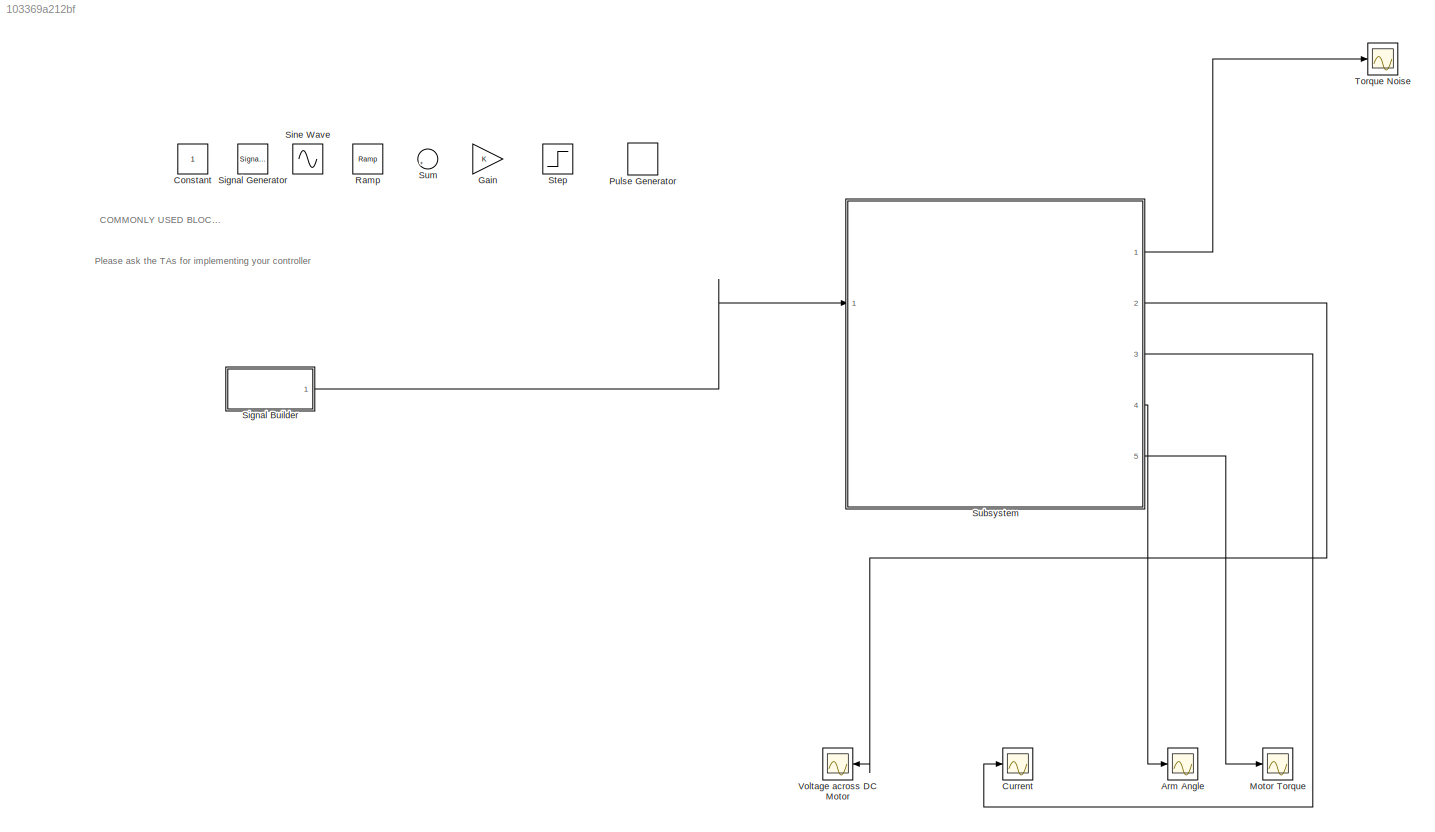
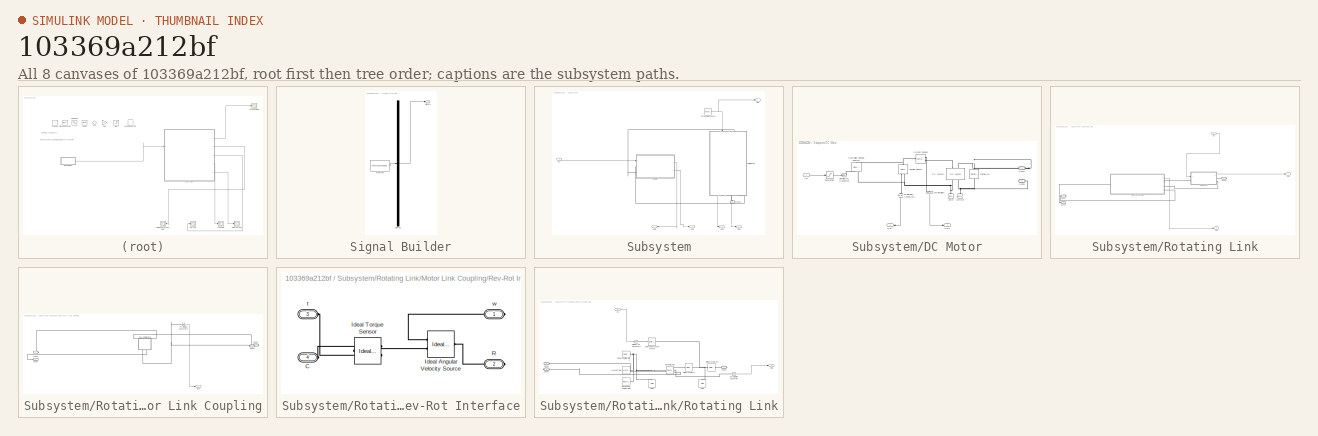
[diagram: thumbnail index - all 8 canvases of the model, root first then tree order]
MODEL slx_103369a212bf
KIND model
BLOCK [Scope] Arm Angle
  DataFormat = StructureWithTime
  Floating = off
  LimitDataPoints = off
  NumInputPorts = 1
  Ports = [1]
  SaveName = ScopeData2
  SaveToWorkspace = on
  ShowLegends = off
  TimeRange = 10
  YMax = 8.0558
  YMin = 0.46239
  ZoomMode = yonly
BLOCK [Constant] Constant
BLOCK [Scope] Current
  DataFormat = StructureWithTime
  Floating = off
  LimitDataPoints = off
  NumInputPorts = 1
  Ports = [1]
  SaveToWorkspace = on
  ShowLegends = off
  TimeRange = 10
  YMax = 0.34734
  YMin = -0.03859
BLOCK [Gain] Gain
  OutDataTypeStr = Inherit: Inherit via internal rule
  ParamDataTypeStr = Inherit: Inherit via internal rule
  SaturateOnIntegerOverflow = off
BLOCK [Scope] Motor Torque
  DataFormat = StructureWithTime
  Floating = off
  LimitDataPoints = off
  NumInputPorts = 1
  Ports = [1]
  SaveName = ScopeData5
  SaveToWorkspace = on
  ShowLegends = off
  TimeRange = 10
  YMax = 0.10255
  YMin = -0.10344
BLOCK [DiscretePulseGenerator] Pulse Generator
  Period = 10
  Ports = [0, 1]
  PulseType = Time based
  PulseWidth = 5
BLOCK [Reference] Ramp  REF=simulink/Sources/Ramp
  Ports = [0, 1]
  SourceBlock = simulink/Sources/Ramp
  SourceType = Ramp
  VectorParams1D = on
  X0 = 0
  slope = 1
  start = 0
BLOCK [SubSystem] Signal Builder
  ClipboardFcn = sigbuilder_block('clipboard');
  CloseFcn = sigbuilder_block('close');
  ContinueFcn = sigbuilder_block('continue');
  CopyFcn = sigbuilder_block('copy');
  DeleteFcn = sigbuilder_block('delete');
  LoadFcn = sigbuilder_block('load');
  MaskHideContents = on
  ModelCloseFcn = sigbuilder_block('modelClose');
  NameChangeFcn = sigbuilder_block('namechange');
  OpenFcn = sigbuilder_block('open',[437.6 199.2 550.4 400 ]);
  PauseFcn = sigbuilder_block('pause');
  Ports = [0, 1]
  PreSaveFcn = sigbuilder_block('preSave');
  RequestExecContextInheritance = off
  StartFcn = sigbuilder_block('start');
  StopFcn = sigbuilder_block('stop');
  Tag = STV Subsys
BLOCK [Demux] Signal Builder/Demux
  Outputs = 1
  Ports = [1, 1]
  Tag = STV Demux
BLOCK [FromWorkspace] Signal Builder/FromWs
  SampleTime = 0
  Tag = STV FromWs
  VariableName = tuvar
  ZeroCross = on
BLOCK [Outport] Signal Builder/Signal 1
  IconDisplay = Port number
  Tag = STV Outport
BLOCK [SignalGenerator] Signal Generator
  Ports = [0, 1]
  Units = rad/sec
BLOCK [Sin] Sine Wave
  Ports = [0, 1]
  SampleTime = 0
BLOCK [Step] Step
  SampleTime = 0
BLOCK [SubSystem] Subsystem
  Ports = [1, 5, 0, 0, 0, 1]
  RequestExecContextInheritance = off
BLOCK [PMIOPort] Subsystem/Conn1
  Port = 1
  Side = Left
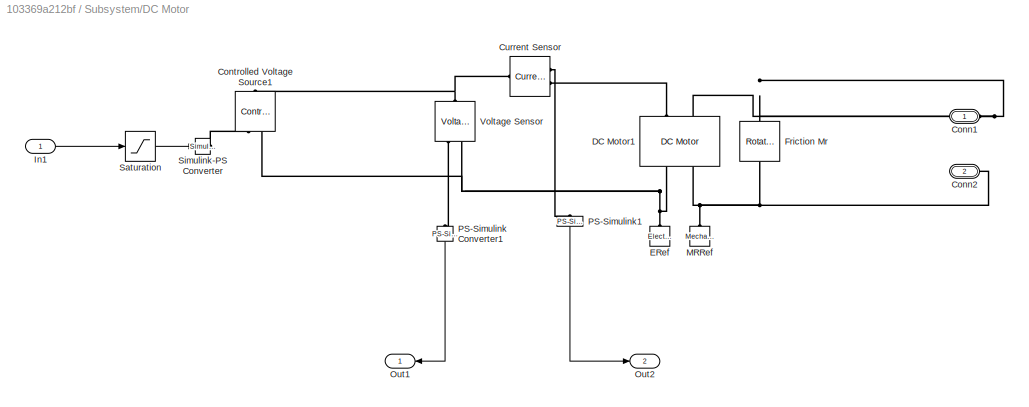
BLOCK [SubSystem] Subsystem/DC Motor
  Ports = [1, 2, 0, 0, 0, 2]
  RequestExecContextInheritance = off
  ShowPortLabels = SignalName
BLOCK [PMIOPort] Subsystem/DC Motor/Conn1
  Port = 1
  Side = Left
BLOCK [PMIOPort] Subsystem/DC Motor/Conn2
  Port = 2
  Side = Left
BLOCK [Reference] Subsystem/DC Motor/Controlled Voltage Source1  REF=fl_lib/Electrical/Electrical Sources/Controlled Voltage
Source
  ClassName = controlled_voltage
  ComponentPath = foundation.electrical.sources.controlled_voltage
  ComponentVariantNames = controlled_voltage
  ComponentVariants = foundation.electrical.sources.controlled_voltage
  LogSimulationData = off
  Ports = [0, 0, 0, 0, 0, 1, 2]
  SchemaVersion = 1
  SourceBlock = fl_lib/Electrical/Electrical Sources/Controlled Voltage\nSource
  SourceFile = foundation.electrical.sources.controlled_voltage
  SourceType = Controlled Voltage\nSource
BLOCK [Reference] Subsystem/DC Motor/Current Sensor  REF=fl_lib/Electrical/Electrical Sensors/Current Sensor
  ClassName = sensor_current
  ComponentPath = foundation.electrical.sensors.current
  ComponentVariantNames = current
  ComponentVariants = foundation.electrical.sensors.current
  LogSimulationData = off
  Ports = [0, 0, 0, 0, 0, 1, 2]
  SchemaVersion = 1
  SourceBlock = fl_lib/Electrical/Electrical Sensors/Current Sensor
  SourceFile = foundation.electrical.sensors.current
  SourceType = Current Sensor
BLOCK [Reference] Subsystem/DC Motor/DC Motor1  REF=elec_lib/Actuators & Drivers/Rotational Actuators/DC Motor
  ClassName = Simscape variant
  ComponentPath = elec.actuators.rotational.dc_motor
  ComponentVariantNames = No thermal port, Show thermal port
  ComponentVariants = elec.actuators.rotational.dc_motor, elec.actuators.rotational.dc_motor_thermal
  J = 0.0002
  J_unit = g*cm^2
  Ki = 6.876e-4
  Ki_unit = N*m/A
  Kv = 0.029
  Kv_unit = V/(rad/s)
  La = 0.01
  La_unit = H
  LogSimulationData = off
  P_rated = 20
  P_rated_unit = W
  Ports = [0, 0, 0, 0, 0, 2, 2]
  Ra = 3.9
  Ra_unit = Ohm
  SchemaVersion = 1
  SourceBlock = elec_lib/Actuators & Drivers/Rotational Actuators/DC Motor
  SourceFile = elec.actuators.rotational.dc_motor
  SourceType = DC Motor
  T_stall = 2.4e-4
  T_stall_unit = N*m
  Tmeas = 25
  Tmeas_unit = C
  V_i_noload = 1.5
  V_i_noload_unit = V
  V_rated = 12
  V_rated_unit = V
  alpha = 0.00393
  alpha_unit = 1/K
  emf_or_torque = 1
  emf_or_torque_unit = 1
  i_noload = 0
  i_noload_unit = A
  initial_temperature = 25
  initial_temperature_unit = C
  lam = 0.00005
  lam_param = 1
  lam_param_unit = 1
  lam_unit = N*m/(rad/s)
  parameterization = 3
  parameterization_unit = 1
  speed0 = 0
  speed0_unit = rpm
  thermal_mass = 100
  thermal_mass_unit = J/K
  w_max = 4000
  w_max_unit = rpm
  w_rated = 2500
  w_rated_unit = rpm
BLOCK [Reference] Subsystem/DC Motor/ERef  REF=fl_lib/Electrical/Electrical Elements/Electrical Reference
  ClassName = reference_electrical
  ComponentPath = foundation.electrical.elements.reference
  ComponentVariantNames = reference
  ComponentVariants = foundation.electrical.elements.reference
  LogSimulationData = off
  Ports = [0, 0, 0, 0, 0, 1]
  SchemaVersion = 1
  SourceBlock = fl_lib/Electrical/Electrical Elements/Electrical Reference
  SourceFile = foundation.electrical.elements.reference
  SourceType = Electrical Reference
BLOCK [Reference] Subsystem/DC Motor/Friction Mr  REF=fl_lib/Mechanical/Rotational Elements/Rotational Friction
  ClassName = friction_rot
  Col_trq = 0.034
  Col_trq_unit = mN*m
  ComponentPath = foundation.mechanical.rotational.friction
  ComponentVariantNames = friction
  ComponentVariants = foundation.mechanical.rotational.friction
  LogSimulationData = off
  Ports = [0, 0, 0, 0, 0, 1, 1]
  SchemaVersion = 1
  SourceBlock = fl_lib/Mechanical/Rotational Elements/Rotational Friction
  SourceFile = foundation.mechanical.rotational.friction
  SourceType = Rotational Friction
  brkwy_trq = 0.034
  brkwy_trq_unit = mN*m
  t = 0
  t_priority = High
  t_specify = off
  t_unit = N*m
  trans_coef = 10
  trans_coef_unit = s/rad
  vel_thr = 0.034
  vel_thr_unit = rad/s
  visc_coef = visc_coef
  visc_coef_unit = N*m/(rad/s)
  w = 0
  w_priority = High
  w_specify = off
  w_unit = rad/s
BLOCK [Inport] Subsystem/DC Motor/In1
  IconDisplay = Port number
BLOCK [Reference] Subsystem/DC Motor/MRRef  REF=fl_lib/Mechanical/Rotational Elements/Mechanical
Rotational Reference
  ClassName = reference_rot
  ComponentPath = foundation.mechanical.rotational.reference
  ComponentVariantNames = reference
  ComponentVariants = foundation.mechanical.rotational.reference
  LogSimulationData = off
  Ports = [0, 0, 0, 0, 0, 1]
  SchemaVersion = 1
  SourceBlock = fl_lib/Mechanical/Rotational Elements/Mechanical\nRotational Reference
  SourceFile = foundation.mechanical.rotational.reference
  SourceType = Mechanical\nRotational Reference
BLOCK [Outport] Subsystem/DC Motor/Out1
  IconDisplay = Port number
BLOCK [Outport] Subsystem/DC Motor/Out2
  IconDisplay = Port number
  Port = 2
BLOCK [Reference] Subsystem/DC Motor/PS-Simulink Converter1  REF=nesl_utility/PS-Simulink
Converter
  AffineConversion = off
  Frequencies = []
  LeftPortType = input
  PhysicalDomain = network_engine_domain
  Ports = [0, 1, 0, 0, 0, 1]
  PseudoPeriodic = off
  RightPortType = output
  SourceBlock = nesl_utility/PS-Simulink\nConverter
  SourceType = PS-Simulink\nConverter
  SubClassName = ps_output
  Unit = 1
BLOCK [Reference] Subsystem/DC Motor/PS-Simulink1  REF=nesl_utility/PS-Simulink
Converter
  AffineConversion = off
  Frequencies = []
  LeftPortType = input
  PhysicalDomain = network_engine_domain
  Ports = [0, 1, 0, 0, 0, 1]
  PseudoPeriodic = off
  RightPortType = output
  SourceBlock = nesl_utility/PS-Simulink\nConverter
  SourceType = PS-Simulink\nConverter
  SubClassName = ps_output
  Unit = 1
BLOCK [Saturate] Subsystem/DC Motor/Saturation
  InputPortMap = u0
  LowerLimit = -12
  Ports = [1, 1]
  UpperLimit = 12
BLOCK [Reference] Subsystem/DC Motor/Simulink-PS Converter  REF=nesl_utility/Simulink-PS
Converter
  AffineConversion = off
  Frequencies = []
  InputFilterTimeConstant = 0.001
  InputFiltering = off
  LeftPortType = input
  NoiseDistribution = none
  NoiseParameters = []
  PhysicalDomain = network_engine_domain
  Ports = [1, 0, 0, 0, 0, 0, 1]
  PseudoPeriodic = off
  RightPortType = output
  SimscapeFilterOrder = 1
  SourceBlock = nesl_utility/Simulink-PS\nConverter
  SourceType = Simulink-PS\nConverter
  SubClassName = ps_input
  UdotUserProvided = 0
  Unit = 1
BLOCK [Reference] Subsystem/DC Motor/Voltage Sensor  REF=fl_lib/Electrical/Electrical Sensors/Voltage Sensor
  ClassName = voltage
  ComponentPath = foundation.electrical.sensors.voltage
  ComponentVariantNames = voltage
  ComponentVariants = foundation.electrical.sensors.voltage
  LogSimulationData = off
  Ports = [0, 0, 0, 0, 0, 1, 2]
  SchemaVersion = 1
  SourceBlock = fl_lib/Electrical/Electrical Sensors/Voltage Sensor
  SourceFile = foundation.electrical.sensors.voltage
  SourceType = Voltage Sensor
BLOCK [Inport] Subsystem/In1
  IconDisplay = Port number
BLOCK [Outport] Subsystem/Out1
  IconDisplay = Port number
BLOCK [Outport] Subsystem/Out2
  IconDisplay = Port number
  Port = 2
BLOCK [Outport] Subsystem/Out3
  IconDisplay = Port number
  Port = 3
BLOCK [Outport] Subsystem/Out4
  IconDisplay = Port number
  Port = 4
BLOCK [Outport] Subsystem/Out5
  IconDisplay = Port number
  Port = 5
BLOCK [SubSystem] Subsystem/Rotating Link
  Ports = [1, 2, 0, 0, 0, 1, 2]
  RequestExecContextInheritance = off
BLOCK [PMIOPort] Subsystem/Rotating Link/Conn1
  Port = 1
  Side = Right
BLOCK [PMIOPort] Subsystem/Rotating Link/Conn2
  Port = 2
  Side = Right
BLOCK [PMIOPort] Subsystem/Rotating Link/Conn3
  Port = 3
  Side = Left
BLOCK [Inport] Subsystem/Rotating Link/In1
  IconDisplay = Port number
BLOCK [SubSystem] Subsystem/Rotating Link/Motor Link Coupling
  Ports = [0, 1, 0, 0, 0, 1, 3]
  RequestExecContextInheritance = off
BLOCK [PMIOPort] Subsystem/Rotating Link/Motor Link Coupling/Conn1
  Port = 1
  Side = Right
BLOCK [PMIOPort] Subsystem/Rotating Link/Motor Link Coupling/Conn2
  Port = 2
  Side = Right
BLOCK [PMIOPort] Subsystem/Rotating Link/Motor Link Coupling/Conn3
  Port = 3
  Side = Right
BLOCK [PMIOPort] Subsystem/Rotating Link/Motor Link Coupling/Conn4
  Port = 4
  Side = Left
BLOCK [Outport] Subsystem/Rotating Link/Motor Link Coupling/Out1
  IconDisplay = Port number
BLOCK [Reference] Subsystem/Rotating Link/Motor Link Coupling/PS-Simulink Converter2  REF=nesl_utility/PS-Simulink
Converter
  AffineConversion = off
  Frequencies = []
  LeftPortType = input
  PhysicalDomain = network_engine_domain
  Ports = [0, 1, 0, 0, 0, 1]
  PseudoPeriodic = off
  RightPortType = output
  SourceBlock = nesl_utility/PS-Simulink\nConverter
  SourceType = PS-Simulink\nConverter
  SubClassName = ps_output
  Unit = 1
BLOCK [SubSystem] Subsystem/Rotating Link/Motor Link Coupling/Rev-Rot Interface
  Ports = [0, 0, 0, 0, 0, 2, 2]
  RequestExecContextInheritance = off
BLOCK [PMIOPort] Subsystem/Rotating Link/Motor Link Coupling/Rev-Rot Interface/C
  Port = 4
  Side = Left
BLOCK [Reference] Subsystem/Rotating Link/Motor Link Coupling/Rev-Rot Interface/Ideal Angular Velocity Source  REF=fl_lib/Mechanical/Mechanical Sources/Ideal Angular
Velocity Source
  ClassName = angular_velocity
  ComponentPath = foundation.mechanical.sources.angular_velocity
  ComponentVariantNames = angular_velocity
  ComponentVariants = foundation.mechanical.sources.angular_velocity
  LogSimulationData = off
  Ports = [0, 0, 0, 0, 0, 1, 2]
  SchemaVersion = 1
  SourceBlock = fl_lib/Mechanical/Mechanical Sources/Ideal Angular\nVelocity Source
  SourceFile = foundation.mechanical.sources.angular_velocity
  SourceType = Ideal Angular\nVelocity Source
BLOCK [Reference] Subsystem/Rotating Link/Motor Link Coupling/Rev-Rot Interface/Ideal Torque Sensor  REF=fl_lib/Mechanical/Mechanical Sensors/Ideal Torque Sensor
  ClassName = torque
  ComponentPath = foundation.mechanical.sensors.torque
  ComponentVariantNames = torque
  ComponentVariants = foundation.mechanical.sensors.torque
  LogSimulationData = off
  Ports = [0, 0, 0, 0, 0, 1, 2]
  SchemaVersion = 1
  SourceBlock = fl_lib/Mechanical/Mechanical Sensors/Ideal Torque Sensor
  SourceFile = foundation.mechanical.sensors.torque
  SourceType = Ideal Torque Sensor
BLOCK [PMIOPort] Subsystem/Rotating Link/Motor Link Coupling/Rev-Rot Interface/R
  Port = 2
  Side = Right
BLOCK [PMIOPort] Subsystem/Rotating Link/Motor Link Coupling/Rev-Rot Interface/t
  Port = 3
  Side = Left
BLOCK [PMIOPort] Subsystem/Rotating Link/Motor Link Coupling/Rev-Rot Interface/w
  Port = 1
  Side = Right
BLOCK [Outport] Subsystem/Rotating Link/Out1
  IconDisplay = Port number
BLOCK [Outport] Subsystem/Rotating Link/Out2
  IconDisplay = Port number
  Port = 2
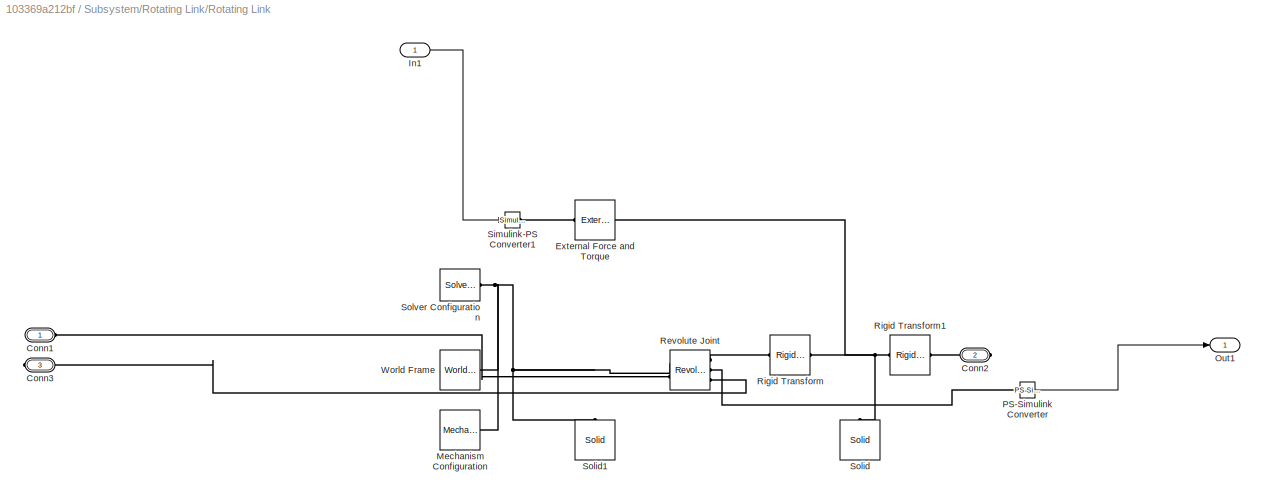
BLOCK [SubSystem] Subsystem/Rotating Link/Rotating Link
  Ports = [1, 1, 0, 0, 0, 1, 2]
  RequestExecContextInheritance = off
BLOCK [PMIOPort] Subsystem/Rotating Link/Rotating Link/Conn1
  Port = 1
  Side = Left
BLOCK [PMIOPort] Subsystem/Rotating Link/Rotating Link/Conn2
  Port = 2
  Side = Right
BLOCK [PMIOPort] Subsystem/Rotating Link/Rotating Link/Conn3
  Port = 3
  Side = Right
BLOCK [Reference] Subsystem/Rotating Link/Rotating Link/External Force and Torque  REF=sm_lib/Forces and
Torques/External Force
and Torque
  BlockFunction = simmechanics.library.forces_torques.external_force_torque
  ClassName = ExternalForceTorque
  EnableForce = off
  EnableForceX = off
  EnableForceY = off
  EnableForceZ = off
  EnableTorque = off
  EnableTorqueX = off
  EnableTorqueY = off
  EnableTorqueZ = on
  ForceResolutionFrame = AttachedFrame
  LogSimulationData = off
  Ports = [0, 0, 0, 0, 0, 1, 1]
  SourceBlock = sm_lib/Forces and\nTorques/External Force\nand Torque
  SourceType = External Force\nand Torque
  TorqueResolutionFrame = AttachedFrame
BLOCK [Inport] Subsystem/Rotating Link/Rotating Link/In1
  IconDisplay = Port number
BLOCK [Reference] Subsystem/Rotating Link/Rotating Link/Mechanism Configuration  REF=sm_lib/Utilities/Mechanism
Configuration
  BlockFunction = simmechanics.library.utilities.mechanism_configuration
  ClassName = MechanismConfiguration
  GravityUnits = m/s^2
  GravityVector = [0 0 0]
  LinearizationDelta = 0.001
  LogSimulationData = off
  Ports = [0, 0, 0, 0, 0, 0, 1]
  SourceBlock = sm_lib/Utilities/Mechanism\nConfiguration
  SourceType = Mechanism\nConfiguration
  UniformGravity = Constant
BLOCK [Outport] Subsystem/Rotating Link/Rotating Link/Out1
  IconDisplay = Port number
BLOCK [Reference] Subsystem/Rotating Link/Rotating Link/PS-Simulink Converter  REF=nesl_utility/PS-Simulink
Converter
  AffineConversion = off
  Frequencies = []
  LeftPortType = input
  PhysicalDomain = network_engine_domain
  Ports = [0, 1, 0, 0, 0, 1]
  PseudoPeriodic = off
  RightPortType = output
  SourceBlock = nesl_utility/PS-Simulink\nConverter
  SourceType = PS-Simulink\nConverter
  SubClassName = ps_output
  Unit = 1
BLOCK [Reference] Subsystem/Rotating Link/Rotating Link/Revolute Joint  REF=sm_lib/Joints/Revolute Joint
  BlockFunction = simmechanics.library.joints.revolute_joint
  ClassName = RevoluteJoint
  CompositeWrenchDir = FollowerOnBase
  CompositeWrenchFrame = BaseFrame
  DampingCoefficient = 0.000005
  DampingCoefficientUnits = N*m/(deg/s)
  EquilibriumPosition = 0
  EquilibriumPositionUnits = deg
  LogSimulationData = off
  MotionActuationMode = ComputedMotion
  Ports = [0, 0, 0, 0, 0, 2, 3]
  PositionTargetPriority = High
  PositionTargetSpecify = on
  PositionTargetValue = 70
  PositionTargetValueUnits = deg
  SenseAcceleration = off
  SenseConstraintForce = off
  SenseConstraintForceX = off
  SenseConstraintForceY = off
  SenseConstraintForceZ = off
  SenseConstraintTorque = off
  SenseConstraintTorqueX = off
  SenseConstraintTorqueY = off
  SenseConstraintTorqueZ = off
  SensePosition = on
  SenseTorqueForce = off
  SenseTotalForce = off
  SenseTotalForceX = off
  SenseTotalForceY = off
  SenseTotalForceZ = off
  SenseTotalTorque = off
  SenseTotalTorqueX = off
  SenseTotalTorqueY = off
  SenseTotalTorqueZ = off
  SenseVelocity = on
  SourceBlock = sm_lib/Joints/Revolute Joint
  SourceType = Revolute Joint
  SpringStiffness = 0
  SpringStiffnessUnits = N*m/deg
  TorqueActuationMode = InputTorque
  VelocityTargetPriority = High
  VelocityTargetSpecify = off
  VelocityTargetValue = 0
  VelocityTargetValueUnits = deg/s
BLOCK [Reference] Subsystem/Rotating Link/Rotating Link/Rigid Transform  REF=sm_lib/Frames and
Transforms/Rigid
Transform
  BaseAlignAxisA = +Y
  BaseAlignAxisB = +Z
  BlockFunction = simmechanics.library.frames_transforms.rigid_transform
  ClassName = RigidTransform
  FollAlignAxisA = +X
  FollAlignAxisB = +Y
  LogSimulationData = off
  Ports = [0, 0, 0, 0, 0, 1, 1]
  RotationAngle = 0.0
  RotationAngleUnits = deg
  RotationArbitraryAxis = [0 0 1]
  RotationMatrix = [1 0 0; 0 1 0; 0 0 1]
  RotationMethod = None
  RotationStandardAxis = +Z
  SourceBlock = sm_lib/Frames and\nTransforms/Rigid\nTransform
  SourceType = Rigid\nTransform
  TranslationCartesianOffset = [0 0 0]
  TranslationLengthUnit = cm
  TranslationMethod = StandardAxis
  TranslationROffset = 0
  TranslationROffsetUnits = m
  TranslationStandardAxis = -X
  TranslationStandardOffset = -10
  TranslationThetaOffset = 0
  TranslationThetaOffsetUnits = deg
  TranslationZOffset = 0
  TranslationZOffsetUnits = m
BLOCK [Reference] Subsystem/Rotating Link/Rotating Link/Rigid Transform1  REF=sm_lib/Frames and
Transforms/Rigid
Transform
  BaseAlignAxisA = +Y
  BaseAlignAxisB = +Z
  BlockFunction = simmechanics.library.frames_transforms.rigid_transform
  ClassName = RigidTransform
  FollAlignAxisA = +X
  FollAlignAxisB = +Y
  LogSimulationData = off
  Ports = [0, 0, 0, 0, 0, 1, 1]
  RotationAngle = 0.0
  RotationAngleUnits = deg
  RotationArbitraryAxis = [0 0 1]
  RotationMatrix = [1 0 0; 0 1 0; 0 0 1]
  RotationMethod = None
  RotationStandardAxis = +Z
  SourceBlock = sm_lib/Frames and\nTransforms/Rigid\nTransform
  SourceType = Rigid\nTransform
  TranslationCartesianOffset = [0 0 0]
  TranslationLengthUnit = cm
  TranslationMethod = StandardAxis
  TranslationROffset = 0
  TranslationROffsetUnits = m
  TranslationStandardAxis = +X
  TranslationStandardOffset = 10
  TranslationThetaOffset = 0
  TranslationThetaOffsetUnits = deg
  TranslationZOffset = 0
  TranslationZOffsetUnits = m
BLOCK [Reference] Subsystem/Rotating Link/Rotating Link/Simulink-PS Converter1  REF=nesl_utility/Simulink-PS
Converter
  AffineConversion = off
  Frequencies = []
  InputFilterTimeConstant = 0.001
  InputFiltering = off
  LeftPortType = input
  NoiseDistribution = none
  NoiseParameters = []
  PhysicalDomain = network_engine_domain
  Ports = [1, 0, 0, 0, 0, 0, 1]
  PseudoPeriodic = off
  RightPortType = output
  SimscapeFilterOrder = 1
  SourceBlock = nesl_utility/Simulink-PS\nConverter
  SourceType = Simulink-PS\nConverter
  SubClassName = ps_input
  UdotUserProvided = 0
  Unit = 1
BLOCK [Reference] Subsystem/Rotating Link/Rotating Link/Solid  REF=sm_lib/Body Elements/Solid
  BlockFunction = simmechanics.library.body_elements.solid
  BrickDimensionUnits = cm
  BrickDimensions = [20 1 1]
  CenterOfMass = [0 0 0]
  CenterOfMassUnits = m
  ClassName = Solid
  CylinderLength = 1
  CylinderLengthUnits = m
  CylinderRadius = 1
  CylinderRadiusUnits = m
  Density = Density
  DensityBased = on
  DensityUnits = kg/m^3
  EllipsoidRadii = [1 1 1]
  EllipsoidRadiiUnits = m
  ExtGeomFileType = STEP
  ExtGeomFileUnits = m
  ExtrusionCrossSection = [1 1; -1 1; -1 -1; 1 -1]
  ExtrusionCrossSectionUnits = m
  ExtrusionLength = 1
  ExtrusionLengthUnits = m
  GeometryShape = Brick
  GraphicAmbientColor = [0.15 0.15 0.15 1.0]
  GraphicDiffuseColor = [0.25 0.4 0.7]
  GraphicEmissiveColor = [0.0 0.0 0.0 1.0]
  GraphicOpacity = 1.0
  GraphicShininess = 75
  GraphicSpecularColor = [0.5 0.5 0.5 1.0]
  GraphicType = FromGeometry
  GraphicVisPropType = SimpleVisualProperties
  InertiaType = CalculateFromGeometry
  LogSimulationData = off
  MarkerShape = Sphere
  MarkerSize = 10
  MarkerSizeUnits = m
  Mass = 1
  MassUnits = kg
  MomentsOfInertia = [1 1 1]
  MomentsOfInertiaUnits = kg*m^2
  PolygonNumSides = 3
  PolygonOuterRadius = 1
  PolygonOuterRadiusUnits = m
  Ports = [0, 0, 0, 0, 0, 0, 1]
  ProductsOfInertia = [0 0 0]
  ProductsOfInertiaUnits = kg*m^2
  RectangleSize = [1 1]
  RectangleSizeUnits = m
  RevolutionAngle = 180
  RevolutionAngleUnits = deg
  RevolutionCrossSection = [1 1; 1 -1; 2 -1; 2 1]
  RevolutionCrossSectionUnits = m
  RevolutionExtent = Full
  SourceBlock = sm_lib/Body Elements/Solid
  SourceType = Solid
  SphereRadius = 1
  SphereRadiusUnits = m
BLOCK [Reference] Subsystem/Rotating Link/Rotating Link/Solid1  REF=sm_lib/Body Elements/Solid
  BlockFunction = simmechanics.library.body_elements.solid
  BrickDimensionUnits = cm
  BrickDimensions = [4 4 20]
  CenterOfMass = [0 0 0]
  CenterOfMassUnits = m
  ClassName = Solid
  CylinderLength = 20
  CylinderLengthUnits = cm
  CylinderRadius = 1
  CylinderRadiusUnits = cm
  Density = 2700
  DensityBased = on
  DensityUnits = kg/m^3
  EllipsoidRadii = [1 1 1]
  EllipsoidRadiiUnits = m
  ExtGeomFileType = STEP
  ExtGeomFileUnits = m
  ExtrusionCrossSection = [1 1; -1 1; -1 -1; 1 -1]
  ExtrusionCrossSectionUnits = m
  ExtrusionLength = 1
  ExtrusionLengthUnits = m
  GeometryShape = Cylinder
  GraphicAmbientColor = [0.15 0.15 0.15 1.0]
  GraphicDiffuseColor = [0.8 0.45 0]
  GraphicEmissiveColor = [0.0 0.0 0.0 1.0]
  GraphicOpacity = 1.0
  GraphicShininess = 75
  GraphicSpecularColor = [0.5 0.5 0.5 1.0]
  GraphicType = FromGeometry
  GraphicVisPropType = SimpleVisualProperties
  InertiaType = CalculateFromGeometry
  LogSimulationData = off
  MarkerShape = Sphere
  MarkerSize = 10
  MarkerSizeUnits = m
  Mass = 1
  MassUnits = kg
  MomentsOfInertia = [1 1 1]
  MomentsOfInertiaUnits = kg*m^2
  PolygonNumSides = 3
  PolygonOuterRadius = 1
  PolygonOuterRadiusUnits = m
  Ports = [0, 0, 0, 0, 0, 0, 1]
  ProductsOfInertia = [0 0 0]
  ProductsOfInertiaUnits = kg*m^2
  RectangleSize = [1 1]
  RectangleSizeUnits = m
  RevolutionAngle = 180
  RevolutionAngleUnits = deg
  RevolutionCrossSection = [1 1; 1 -1; 2 -1; 2 1]
  RevolutionCrossSectionUnits = m
  RevolutionExtent = Full
  SourceBlock = sm_lib/Body Elements/Solid
  SourceType = Solid
  SphereRadius = 1
  SphereRadiusUnits = m
BLOCK [Reference] Subsystem/Rotating Link/Rotating Link/Solver Configuration  REF=nesl_utility/Solver
Configuration
  AbsTol = 1e-06
  Accelerate = off
  AutomaticFiltering = on
  DelaysMemoryBudget = 1024
  DoDC = off
  DoFixedCost = off
  EnableSwitchedLinearOptims = on
  FilteringTimeConstant = 0.001
  FrequencyDomain = off
  Harmonics = []
  LeftPortType = input
  LinearAlgebra = Sparse
  LocalSolverChoice = NE_BACKWARD_EULER_ADVANCER
  LocalSolverSampleTime = 0.001
  MaxModeIter = 2
  MaxNonlinIter = 3
  MinStep = 1e-09
  PhysicalDomain = network_engine_domain
  Ports = [0, 0, 0, 0, 0, 0, 1]
  Profile = off
  RelTol = 0.001
  ResidualTolerance = 1e-09
  RightPortType = generic
  SimulateNoise = off
  SourceBlock = nesl_utility/Solver\nConfiguration
  SourceType = Solver\nConfiguration
  SubClassName = solver
  ToWorkspace = off
  Tones = []
  UseCCode = off
  UseLocalSampling = off
  UseLocalSolver = off
BLOCK [Reference] Subsystem/Rotating Link/Rotating Link/World Frame  REF=sm_lib/Frames and
Transforms/World Frame
  BlockFunction = simmechanics.library.frames_transforms.world_frame
  ClassName = WorldFrame
  LogSimulationData = off
  Ports = [0, 0, 0, 0, 0, 0, 1]
  SourceBlock = sm_lib/Frames and\nTransforms/World Frame
  SourceType = World Frame
BLOCK [Reference] Subsystem/Torque Disturbance  REF=dspsrcs4/Random
Source
  CltLength = 12
  DataType = Double
  IsInherit = off
  MaxVal = MaxVal
  MeanVal = 0
  MinVal = MinVal
  NormMethod = Ziggurat
  OutComplex = Real
  Ports = [0, 1]
  RepMode = Repeatable
  SampFrame = 1
  SampMode = Discrete
  SampTime = 0.01
  SourceBlock = dspsrcs4/Random\nSource
  SourceType = Random Source
  SrcType = Uniform
  UserDataPersistent = on
  VarVal = 1
  rawSeed = 1
BLOCK [Sum] Sum
  IconShape = round
  InputSameDT = off
  Inputs = |++
  OutDataTypeStr = Inherit: Inherit via internal rule
  Ports = [2, 1]
  SaturateOnIntegerOverflow = off
BLOCK [Scope] Torque Noise
  DataFormat = StructureWithTime
  Floating = off
  LimitDataPoints = off
  NumInputPorts = 1
  Ports = [1]
  SaveName = ScopeData1
  SaveToWorkspace = on
  ShowLegends = off
  TimeRange = 10
  YMax = 0.01182
  YMin = -0.01219
BLOCK [Scope] Voltage across DC Motor
  DataFormat = StructureWithTime
  Floating = off
  LimitDataPoints = off
  NumInputPorts = 1
  Ports = [1]
  SaveName = ScopeData4
  ShowLegends = off
  YMax = 14.99814
  YMin = -14.98323
ANNOTATION (root): COMMONLY USED BLOCKS
ANNOTATION (root): Please ask the TAs for implementing your controller
LINE Signal Builder:1 -> Subsystem:1
LINE Subsystem/DC Motor/In1:1 -> Subsystem/DC Motor/Saturation:1
LINE Subsystem/DC Motor/PS-Simulink Converter1:1 -> Subsystem/DC Motor/Out1:1
LINE Subsystem/DC Motor/PS-Simulink1:1 -> Subsystem/DC Motor/Out2:1
LINE Subsystem/DC Motor/Saturation:1 -> Subsystem/DC Motor/Simulink-PS Converter:1
LINE Subsystem/DC Motor:1 -> Subsystem/Out2:1
LINE Subsystem/DC Motor:2 -> Subsystem/Out3:1
LINE Subsystem/In1:1 -> Subsystem/DC Motor:1
LINE Subsystem/Rotating Link/In1:1 -> Subsystem/Rotating Link/Rotating Link:1
LINE Subsystem/Rotating Link/Motor Link Coupling/PS-Simulink Converter2:1 -> Subsystem/Rotating Link/Motor Link Coupling/Out1:1
LINE Subsystem/Rotating Link/Motor Link Coupling:1 -> Subsystem/Rotating Link/Out2:1
LINE Subsystem/Rotating Link/Rotating Link/In1:1 -> Subsystem/Rotating Link/Rotating Link/Simulink-PS Converter1:1
LINE Subsystem/Rotating Link/Rotating Link/PS-Simulink Converter:1 -> Subsystem/Rotating Link/Rotating Link/Out1:1
LINE Subsystem/Rotating Link/Rotating Link:1 -> Subsystem/Rotating Link/Out1:1
LINE Subsystem/Rotating Link:1 -> Subsystem/Out4:1
LINE Subsystem/Rotating Link:2 -> Subsystem/Out5:1
NET Subsystem/Torque Disturbance:1 -> Subsystem/Out1:1, Subsystem/Rotating Link:1
LINE Subsystem:1 -> Torque Noise:1
LINE Subsystem:2 -> Voltage across DC Motor:1
LINE Subsystem:3 -> Current:1
LINE Subsystem:4 -> Arm Angle:1
LINE Subsystem:5 -> Motor Torque:1
PLINE Subsystem/Conn1:RConn1 -- Subsystem/Rotating Link:RConn1
PNET net1: Subsystem/DC Motor/Conn1:RConn1 -- Subsystem/DC Motor/DC Motor1:LConn2 -- Subsystem/DC Motor/Friction Mr:LConn1
PNET net2: Subsystem/DC Motor/Conn2:RConn1 -- Subsystem/DC Motor/DC Motor1:RConn2 -- Subsystem/DC Motor/Friction Mr:RConn1 -- Subsystem/DC Motor/MRRef:LConn1
PNET net3: Subsystem/DC Motor/Controlled Voltage Source1:LConn1 -- Subsystem/DC Motor/Current Sensor:LConn1 -- Subsystem/DC Motor/Voltage Sensor:LConn1
PLINE Subsystem/DC Motor/Controlled Voltage Source1:RConn1 -- Subsystem/DC Motor/Simulink-PS Converter:RConn1
PNET net4: Subsystem/DC Motor/Controlled Voltage Source1:RConn2 -- Subsystem/DC Motor/DC Motor1:RConn1 -- Subsystem/DC Motor/ERef:LConn1 -- Subsystem/DC Motor/Voltage Sensor:RConn2
PLINE Subsystem/DC Motor/Current Sensor:RConn1 -- Subsystem/DC Motor/PS-Simulink1:LConn1
PLINE Subsystem/DC Motor/Current Sensor:RConn2 -- Subsystem/DC Motor/DC Motor1:LConn1
PLINE Subsystem/DC Motor/PS-Simulink Converter1:LConn1 -- Subsystem/DC Motor/Voltage Sensor:RConn1
PLINE Subsystem/DC Motor:LConn1 -- Subsystem/Rotating Link:RConn2
PLINE Subsystem/DC Motor:LConn2 -- Subsystem/Rotating Link:LConn1
PLINE Subsystem/Rotating Link/Conn1:RConn1 -- Subsystem/Rotating Link/Rotating Link:RConn1
PLINE Subsystem/Rotating Link/Conn2:RConn1 -- Subsystem/Rotating Link/Motor Link Coupling:RConn3
PLINE Subsystem/Rotating Link/Conn3:RConn1 -- Subsystem/Rotating Link/Motor Link Coupling:LConn1
PNET net5: Subsystem/Rotating Link/Motor Link Coupling/Conn1:RConn1 -- Subsystem/Rotating Link/Motor Link Coupling/PS-Simulink Converter2:LConn1 -- Subsystem/Rotating Link/Motor Link Coupling/Rev-Rot Interface:LConn1
PLINE Subsystem/Rotating Link/Motor Link Coupling/Conn2:RConn1 -- Subsystem/Rotating Link/Motor Link Coupling/Rev-Rot Interface:RConn1
PLINE Subsystem/Rotating Link/Motor Link Coupling/Conn3:RConn1 -- Subsystem/Rotating Link/Motor Link Coupling/Rev-Rot Interface:RConn2
PLINE Subsystem/Rotating Link/Motor Link Coupling/Conn4:RConn1 -- Subsystem/Rotating Link/Motor Link Coupling/Rev-Rot Interface:LConn2
PLINE Subsystem/Rotating Link/Motor Link Coupling/Rev-Rot Interface/C:RConn1 -- Subsystem/Rotating Link/Motor Link Coupling/Rev-Rot Interface/Ideal Torque Sensor:RConn1
PLINE Subsystem/Rotating Link/Motor Link Coupling/Rev-Rot Interface/Ideal Angular Velocity Source:LConn1 -- Subsystem/Rotating Link/Motor Link Coupling/Rev-Rot Interface/R:RConn1
PLINE Subsystem/Rotating Link/Motor Link Coupling/Rev-Rot Interface/Ideal Angular Velocity Source:RConn1 -- Subsystem/Rotating Link/Motor Link Coupling/Rev-Rot Interface/w:RConn1
PLINE Subsystem/Rotating Link/Motor Link Coupling/Rev-Rot Interface/Ideal Angular Velocity Source:RConn2 -- Subsystem/Rotating Link/Motor Link Coupling/Rev-Rot Interface/Ideal Torque Sensor:LConn1
PLINE Subsystem/Rotating Link/Motor Link Coupling/Rev-Rot Interface/Ideal Torque Sensor:RConn2 -- Subsystem/Rotating Link/Motor Link Coupling/Rev-Rot Interface/t:RConn1
PLINE Subsystem/Rotating Link/Motor Link Coupling:RConn1 -- Subsystem/Rotating Link/Rotating Link:LConn1
PLINE Subsystem/Rotating Link/Motor Link Coupling:RConn2 -- Subsystem/Rotating Link/Rotating Link:RConn2
PLINE Subsystem/Rotating Link/Rotating Link/Conn1:RConn1 -- Subsystem/Rotating Link/Rotating Link/Revolute Joint:LConn2
PLINE Subsystem/Rotating Link/Rotating Link/Conn2:RConn1 -- Subsystem/Rotating Link/Rotating Link/Rigid Transform1:RConn1
PLINE Subsystem/Rotating Link/Rotating Link/Conn3:RConn1 -- Subsystem/Rotating Link/Rotating Link/Revolute Joint:RConn3
PLINE Subsystem/Rotating Link/Rotating Link/External Force and Torque:LConn1 -- Subsystem/Rotating Link/Rotating Link/Simulink-PS Converter1:RConn1
PNET net6: Subsystem/Rotating Link/Rotating Link/External Force and Torque:RConn1 -- Subsystem/Rotating Link/Rotating Link/Rigid Transform1:LConn1 -- Subsystem/Rotating Link/Rotating Link/Rigid Transform:RConn1 -- Subsystem/Rotating Link/Rotating Link/Solid:RConn1
PNET net7: Subsystem/Rotating Link/Rotating Link/Mechanism Configuration:RConn1 -- Subsystem/Rotating Link/Rotating Link/Revolute Joint:LConn1 -- Subsystem/Rotating Link/Rotating Link/Solid1:RConn1 -- Subsystem/Rotating Link/Rotating Link/Solver Configuration:RConn1 -- Subsystem/Rotating Link/Rotating Link/World Frame:RConn1
PLINE Subsystem/Rotating Link/Rotating Link/PS-Simulink Converter:LConn1 -- Subsystem/Rotating Link/Rotating Link/Revolute Joint:RConn2
PLINE Subsystem/Rotating Link/Rotating Link/Revolute Joint:RConn1 -- Subsystem/Rotating Link/Rotating Link/Rigid Transform:LConn1
note: NET lines group one-source signal fan-out (src -> all destinations, sorted); 1:1 wires keep LINE; PNET lines group multi-terminal physical nets as a canonical sorted terminal list (undirected conserving connections); 2-terminal nets keep the pairwise PLINE form
